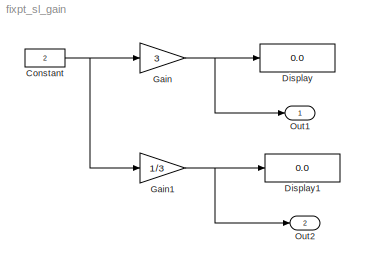
MODEL fixpt_sl_gain
KIND model
BLOCK [Constant] Constant
  AttributesFormatString = DataType = %<OutDataTypeStr>
  OutDataTypeStr = fixdt(1,8,1)
  SID = 1
  SampleTime = -1
  Value = 2
BLOCK [Display] Display
  AttributesFormatString = Format = %<Format>
  Decimation = 1
  Lockdown = off
  Ports = [1]
  SID = 2
BLOCK [Display] Display1
  AttributesFormatString = Format = %<Format>
  Decimation = 1
  Lockdown = off
  Ports = [1]
  SID = 3
BLOCK [Gain] Gain
  Gain = 3
  OutDataTypeStr = Inherit: Inherit via internal rule
  ParamDataTypeStr = Inherit: Inherit via internal rule
  SID = 4
  SaturateOnIntegerOverflow = off
BLOCK [Gain] Gain1
  Gain = 1/3
  OutDataTypeStr = Inherit: Inherit via internal rule
  ParamDataTypeStr = Inherit: Inherit via internal rule
  SID = 5
  SaturateOnIntegerOverflow = off
BLOCK [Outport] Out1
  IconDisplay = Port number
  SID = 6
BLOCK [Outport] Out2
  IconDisplay = Port number
  Port = 2
  SID = 7
NET Constant:1 -> Gain1:1, Gain:1
NET Gain1:1 -> Display1:1, Out2:1
NET Gain:1 -> Display:1, Out1:1
note: NET lines group one-source signal fan-out (src -> all destinations, sorted); 1:1 wires keep LINE
